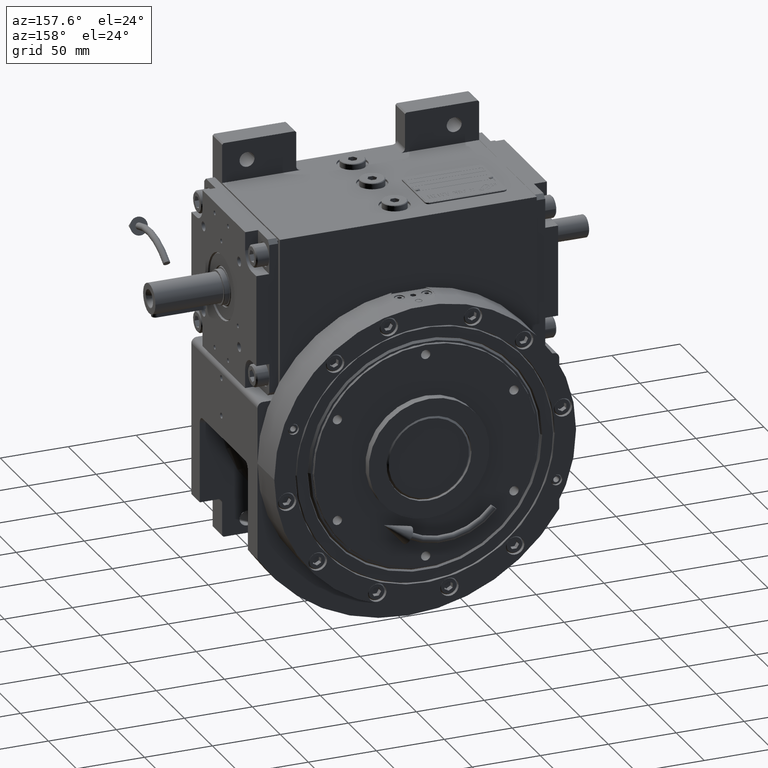
[diagram: clean part render]
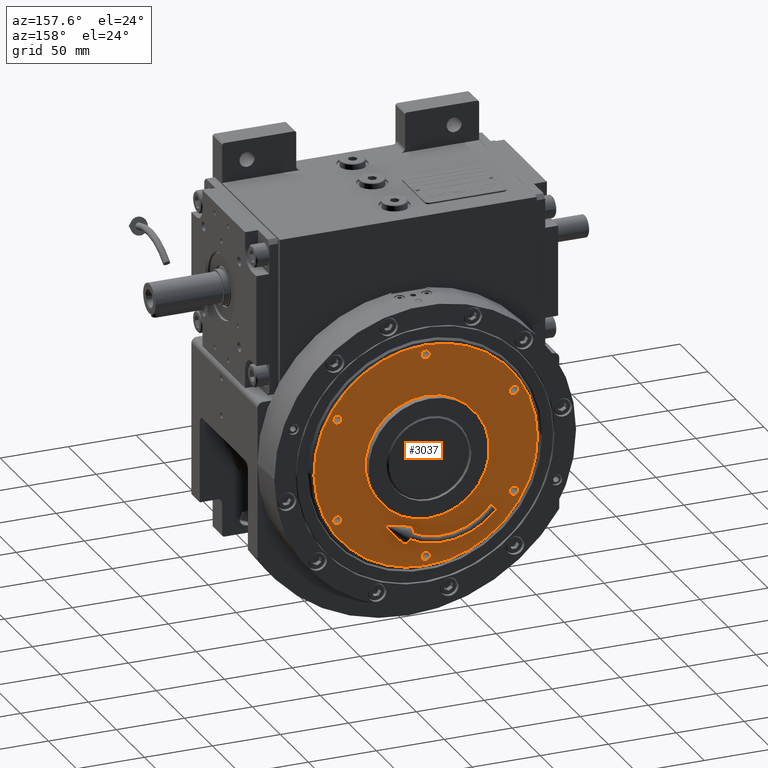
[diagram: same view with one face highlighted and labeled with its STEP entity id]
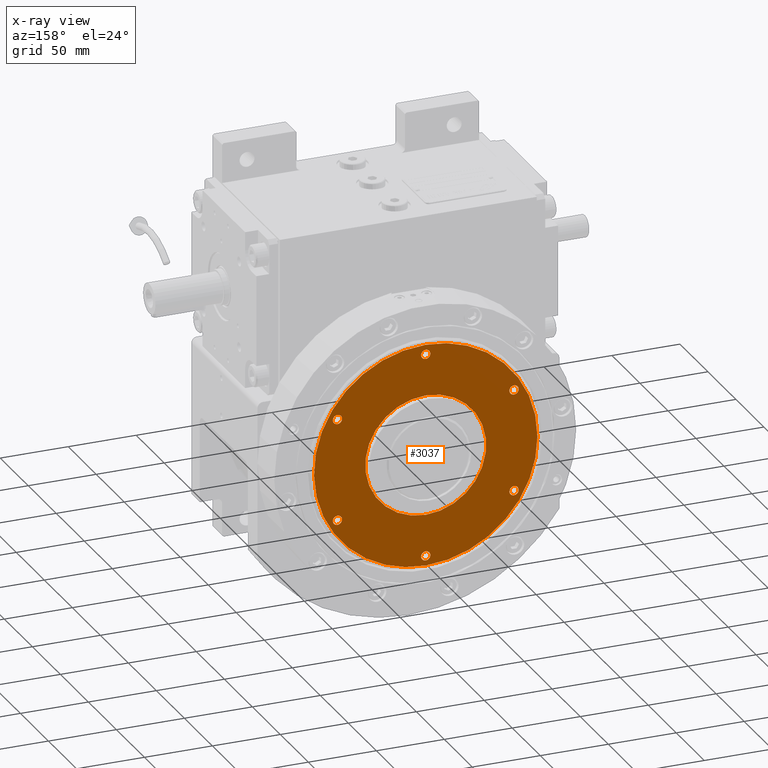
[diagram: x-ray of the same camera — body ghosted, the highlighted face saturated]
A machine part, auxiliary view. The second image highlights one B-rep face of the part: STEP entity #3037.
The next image is the same camera in x-ray: the body ghosted, the highlighted face saturated — about 0% of this face is hidden behind the body in this view.
In plain terms, the highlighted planar face has unit normal (-0, -1, 0).
Its self-contained STEP definition (entity closure, byte-faithful):
#130 = DIRECTION ( 'NONE',  ( 2.076516686384254139E-16, -1.000000000000000000, -1.606026332851818412E-15 ) ) ;
#195 = VERTEX_POINT ( 'NONE', #60080 ) ;
#201 = CIRCLE ( 'NONE', #6757, 3.400000000000000355 ) ;
#411 = ORIENTED_EDGE ( 'NONE', *, *, #856, .F. ) ;
#479 = ORIENTED_EDGE ( 'NONE', *, *, #46910, .F. ) ;
#658 = CARTESIAN_POINT ( 'NONE',  ( 73.74813151264126532, 110.5000000000000142, -36.37479690083394246 ) ) ;
#856 = EDGE_CURVE ( 'NONE', #26969, #61461, #20213, .T. ) ;
#994 = VERTEX_POINT ( 'NONE', #56077 ) ;
#1031 = CARTESIAN_POINT ( 'NONE',  ( -81.03742544091521438, 110.5000000000000853, -13.71909706410265350 ) ) ;
#1201 = FACE_OUTER_BOUND ( 'NONE', #44023, .T. ) ;
#1343 = CARTESIAN_POINT ( 'NONE',  ( 21.32671897775460579, 110.5000000000000853, -79.55379426815648003 ) ) ;
#1377 = CARTESIAN_POINT ( 'NONE',  ( -79.42706700825722521, 110.5000000000001421, -21.28825086087030627 ) ) ;
#1461 = CARTESIAN_POINT ( 'NONE',  ( -4.050926261100700401E-14, 110.5000000000000000, 1.712657793362490655E-13 ) ) ;
#2023 = CARTESIAN_POINT ( 'NONE',  ( -5.396175763947922199, 110.4999999999998721, 82.18599094346414802 ) ) ;
#2062 = CARTESIAN_POINT ( 'NONE',  ( -50.14754556814374098, 110.5000000000001279, -65.33666926840503208 ) ) ;
#2283 = DIRECTION ( 'NONE',  ( 3.652307214833036888E-15, 1.000000000000000000, 3.671899385855933489E-15 ) ) ;
#2360 = CARTESIAN_POINT ( 'NONE',  ( 10.74154536275718641, 110.4999999999998579, 81.65949047945834138 ) ) ;
#2800 = ORIENTED_EDGE ( 'NONE', *, *, #41016, .T. ) ;
#2850 = CARTESIAN_POINT ( 'NONE',  ( -75.00000000000000000, 110.5000000000000000, 2.458476131006590826E-13 ) ) ;
#3028 = CARTESIAN_POINT ( 'NONE',  ( 41.17346744512529710, 110.4999999999998579, 71.33314274904860497 ) ) ;
#3037 = ADVANCED_FACE ( 'NONE', ( #1201, #32886, #42547, #10484, #10819, #48371, #5338, #62873 ), #20847, .F. ) ;
#3268 = AXIS2_PLACEMENT_3D ( 'NONE', #47624, #15603, #32813 ) ;
#3691 = CARTESIAN_POINT ( 'NONE',  ( 73.74790136345734481, 110.4999999999998437, 36.37523474268285639 ) ) ;
#3798 = DIRECTION ( 'NONE',  ( -5.273559366969652325E-16, 1.000000000000000000, 3.671899385855942166E-15 ) ) ;
#4877 = CIRCLE ( 'NONE', #18119, 3.400000000000000355 ) ;
#5338 = FACE_BOUND ( 'NONE', #17202, .T. ) ;
#5795 = EDGE_CURVE ( 'NONE', #994, #8260, #18889, .T. ) ;
#5803 = CARTESIAN_POINT ( 'NONE',  ( 82.18603400874251008, 110.5000015448018047, 1.581324463008391097E-07 ) ) ;
#6171 = CARTESIAN_POINT ( 'NONE',  ( -77.86803878220750619, 110.5000000000001137, -26.42874468702207480 ) ) ;
#6185 = CIRCLE ( 'NONE', #62304, 3.400000000000000355 ) ;
#6409 = AXIS2_PLACEMENT_3D ( 'NONE', #23318, #38844, #43671 ) ;
#6410 = B_SPLINE_CURVE_WITH_KNOTS ( 'NONE', 3,
 ( #64702, #17852, #65041, #33710, #12671, #39213, #49528, #17512, #28861, #12331, #60223, #24014, #13008, #38542, #28190, #38877, #60543, #33363, #28527, #7160, #55021, #49200, #39537, #2023, #13346, #2360, #7831, #49870, #50210, #3028, #56377, #9856, #8510, #45370, #62577, #41241, #3691, #46730, #67732, #67054, #62228, #66725, #51213, #9513, #29861, #20567, #56730, #20225 ),
 .UNSPECIFIED., .F., .F.,
 ( 4, 1, 1, 1, 2, 2, 2, 2, 2, 2, 2, 2, 2, 2, 2, 2, 2, 2, 2, 2, 2, 1, 1, 1, 2, 2, 4 ),
 ( 0.000000000000000000, 0.03125000000000001388, 0.04687500000000003469, 0.05468750000000004857, 0.05859375000000006939, 0.06250000000000008327, 0.09375000000000011102, 0.1250000000000001388, 0.1875000000000001943, 0.2500000000000002220, 0.3125000000000002776, 0.3750000000000002776, 0.4375000000000003331, 0.5000000000000003331, 0.5625000000000004441, 0.6250000000000005551, 0.6875000000000005551, 0.7500000000000005551, 0.8125000000000005551, 0.8437500000000005551, 0.8750000000000006661, 0.9062500000000006661, 0.9218750000000006661, 0.9296875000000006661, 0.9335937500000006661, 0.9375000000000006661, 1.000000000000000000 ),
 .UNSPECIFIED. ) ;
#6757 = AXIS2_PLACEMENT_3D ( 'NONE', #38769, #28754, #64243 ) ;
#6820 = CARTESIAN_POINT ( 'NONE',  ( 78.32115647600105035, 110.4999999999999716, -25.16263082416804409 ) ) ;
#7160 = CARTESIAN_POINT ( 'NONE',  ( -36.43677092628833236, 110.4999999999999005, 73.86494086435318707 ) ) ;
#7192 = DIRECTION ( 'NONE',  ( -5.273559366969623729E-16, 1.000000000000000000, -5.077637656740424015E-16 ) ) ;
#7201 = CARTESIAN_POINT ( 'NONE',  ( -80.08026981023142810, 110.5000000000000995, -18.67866566709005838 ) ) ;
#7597 = CIRCLE ( 'NONE', #46108, 44.45000000000000284 ) ;
#7730 = AXIS2_PLACEMENT_3D ( 'NONE', #26349, #27718, #37722 ) ;
#7766 = ORIENTED_EDGE ( 'NONE', *, *, #46334, .F. ) ;
#7831 = CARTESIAN_POINT ( 'NONE',  ( 21.32597268393186951, 110.4999999999998721, 79.55402177641899186 ) ) ;
#8105 = CIRCLE ( 'NONE', #18014, 3.400000000000000355 ) ;
#8260 = VERTEX_POINT ( 'NONE', #38942 ) ;
#8510 = CARTESIAN_POINT ( 'NONE',  ( 61.93011393209873461, 110.4999999999998721, 54.29833759267270921 ) ) ;
#8538 = ORIENTED_EDGE ( 'NONE', *, *, #57475, .F. ) ;
#8693 = CIRCLE ( 'NONE', #54884, 3.400000000000000355 ) ;
#8912 = VERTEX_POINT ( 'NONE', #48756 ) ;
#9480 = VERTEX_POINT ( 'NONE', #33790 ) ;
#9513 = CARTESIAN_POINT ( 'NONE',  ( 80.47346500646511913, 110.4999999999999289, 16.69135747300166628 ) ) ;
#9631 = DIRECTION ( 'NONE',  ( -5.273559366969644437E-16, 1.000000000000000000, 1.582067810090946875E-15 ) ) ;
#9856 = CARTESIAN_POINT ( 'NONE',  ( 54.29876972623152653, 110.4999999999998579, 61.92967476324753306 ) ) ;
#9966 = CARTESIAN_POINT ( 'NONE',  ( 37.49999999999973710, 110.5000000000005258, 64.95190528383290030 ) ) ;
#10484 = FACE_BOUND ( 'NONE', #61924, .T. ) ;
#10819 = FACE_BOUND ( 'NONE', #31118, .T. ) ;
#11297 = CARTESIAN_POINT ( 'NONE',  ( 81.65587465362946773, 110.5000000000000000, -10.75668806138973110 ) ) ;
#12331 = CARTESIAN_POINT ( 'NONE',  ( -79.42723460417916215, 110.5000000000000000, 21.28768615169964917 ) ) ;
#12671 = CARTESIAN_POINT ( 'NONE',  ( -81.03738559922314266, 110.5000000000000426, 13.71894467123681594 ) ) ;
#12712 = CARTESIAN_POINT ( 'NONE',  ( -61.93037135062299825, 110.5000000000001421, -54.29808050887285731 ) ) ;
#13008 = CARTESIAN_POINT ( 'NONE',  ( -73.86467355760835574, 110.4999999999999574, 36.43724814399707412 ) ) ;
#13211 = VERTEX_POINT ( 'NONE', #65842 ) ;
#13346 = CARTESIAN_POINT ( 'NONE',  ( 5.396190313849515974, 110.4999999999998721, 82.18606838660643632 ) ) ;
#14026 = AXIS2_PLACEMENT_3D ( 'NONE', #9966, #3798, #60995 ) ;
#15603 = DIRECTION ( 'NONE',  ( -5.273559366969623729E-16, 1.000000000000000000, -5.077637656740325407E-16 ) ) ;
#15760 = EDGE_LOOP ( 'NONE', ( #8538, #63502 ) ) ;
#16001 = EDGE_CURVE ( 'NONE', #8260, #994, #4877, .T. ) ;
#16666 = ORIENTED_EDGE ( 'NONE', *, *, #30190, .F. ) ;
#16749 = ORIENTED_EDGE ( 'NONE', *, *, #30800, .F. ) ;
#16826 = CARTESIAN_POINT ( 'NONE',  ( 50.14771722367685669, 110.5000000000000995, -65.33645767331695708 ) ) ;
#16861 = CARTESIAN_POINT ( 'NONE',  ( -10.74076764840351927, 110.5000000000001137, -81.65964476131436811 ) ) ;
#17202 = EDGE_LOOP ( 'NONE', ( #24156, #56614 ) ) ;
#17512 = CARTESIAN_POINT ( 'NONE',  ( -80.67297687466574985, 110.5000000000000284, 15.69867770626870396 ) ) ;
#17550 = CARTESIAN_POINT ( 'NONE',  ( -54.29850716401770683, 110.5000000000001421, -61.92993699073136327 ) ) ;
#17852 = CARTESIAN_POINT ( 'NONE',  ( -82.18410185386893829, 110.5000000000000711, 2.706720040397581517 ) ) ;
#17972 = DIRECTION ( 'NONE',  ( 1.000000000000000000, -1.248844797103662988E-15, -6.380827771813924907E-16 ) ) ;
#18014 = AXIS2_PLACEMENT_3D ( 'NONE', #24774, #34809, #35818 ) ;
#18119 = AXIS2_PLACEMENT_3D ( 'NONE', #2850, #33875, #49699 ) ;
#18232 = CARTESIAN_POINT ( 'NONE',  ( -80.67302273752038388, 110.5000000000000853, -15.69862675829485354 ) ) ;
#18889 = CIRCLE ( 'NONE', #37603, 3.400000000000000355 ) ;
#20213 = CIRCLE ( 'NONE', #58712, 3.400000000000000355 ) ;
#20225 = CARTESIAN_POINT ( 'NONE',  ( 82.18603400874251008, 110.5000015448018047, 1.581324463008391097E-07 ) ) ;
#20567 = CARTESIAN_POINT ( 'NONE',  ( 81.65593245021587165, 110.4999999999999432, 10.75709170780801038 ) ) ;
#20847 = PLANE ( 'NONE',  #7730 ) ;
#20864 = CIRCLE ( 'NONE', #50550, 44.45000000000000284 ) ;
#20998 = VERTEX_POINT ( 'NONE', #54575 ) ;
#21539 = ORIENTED_EDGE ( 'NONE', *, *, #5795, .F. ) ;
#22159 = VERTEX_POINT ( 'NONE', #60109 ) ;
#22344 = CARTESIAN_POINT ( 'NONE',  ( 80.33387830201934321, 110.5000000000000142, -17.35095847086814302 ) ) ;
#22583 = AXIS2_PLACEMENT_3D ( 'NONE', #39701, #45876, #51036 ) ;
#22725 = CARTESIAN_POINT ( 'NONE',  ( -73.86436510405077627, 110.5000000000001421, -36.43783581387047832 ) ) ;
#23318 = CARTESIAN_POINT ( 'NONE',  ( -37.50000000000026290, 110.5000000000005258, 64.95190528383290030 ) ) ;
#23612 = DIRECTION ( 'NONE',  ( 1.000000000000000000, -4.081702296416015997E-15, 0.000000000000000000 ) ) ;
#23919 = EDGE_LOOP ( 'NONE', ( #411, #7766 ) ) ;
#24014 = CARTESIAN_POINT ( 'NONE',  ( -76.96276536764069931, 110.5000000000000000, 28.95822631422438675 ) ) ;
#24156 = ORIENTED_EDGE ( 'NONE', *, *, #50144, .F. ) ;
#24774 = CARTESIAN_POINT ( 'NONE',  ( 75.00000000000000000, 110.5000000000000000, 1.068979973983941616E-13 ) ) ;
#24986 = DIRECTION ( 'NONE',  ( -1.000000000000000000, 4.081702296416015997E-15, 0.000000000000000000 ) ) ;
#26349 = CARTESIAN_POINT ( 'NONE',  ( -3.796580531812242820E-14, 110.5000000000000000, 1.748184930150495917E-13 ) ) ;
#26712 = DIRECTION ( 'NONE',  ( -5.273559366969644437E-16, 1.000000000000000000, 1.582067810090946875E-15 ) ) ;
#26823 = CARTESIAN_POINT ( 'NONE',  ( 80.54158547785662847, 110.4999999999999716, -16.35931090249719233 ) ) ;
#26969 = VERTEX_POINT ( 'NONE', #50629 ) ;
#27718 = DIRECTION ( 'NONE',  ( -7.110468897703216240E-16, -1.000000000000000000, -1.582067810090945692E-15 ) ) ;
#27861 = CARTESIAN_POINT ( 'NONE',  ( 61.93063791654589068, 110.5000000000000568, -54.29769947772616945 ) ) ;
#27891 = CARTESIAN_POINT ( 'NONE',  ( -81.41054315470110225, 110.5000000000000853, -11.40073033654683776 ) ) ;
#28190 = CARTESIAN_POINT ( 'NONE',  ( -65.33761603904910942, 110.4999999999999858, 50.14632643991285477 ) ) ;
#28232 = CARTESIAN_POINT ( 'NONE',  ( -82.18412582237166930, 110.5000000000000995, -2.706922455996552124 ) ) ;
#28251 = B_SPLINE_CURVE_WITH_KNOTS ( 'NONE', 3,
 ( #5803, #44048, #11297, #26823, #32330, #22344, #47832, #43019, #6820, #65044, #59207, #658, #53330, #42680, #64356, #27861, #63675, #16826, #48860, #37861, #33023, #1343, #43362, #38215, #54023 ),
 .UNSPECIFIED., .F., .F.,
 ( 4, 2, 2, 1, 1, 1, 2, 2, 2, 2, 2, 2, 2, 4 ),
 ( 0.000000000000000000, 0.06249999648971073934, 0.06640624627031764537, 0.07031249605092454447, 0.07812499561213832877, 0.09374999473456591126, 0.1249999929794211317, 0.1562499912242763522, 0.1874999894691315450, 0.2499999859588421525, 0.3124999824485527600, 0.3749999789382633120, 0.4374999754279739750, 0.4999999719176845825 ),
 .UNSPECIFIED. ) ;
#28527 = CARTESIAN_POINT ( 'NONE',  ( -41.17372798125236244, 110.4999999999999147, 71.33306199257280866 ) ) ;
#28593 = CIRCLE ( 'NONE', #3268, 3.400000000000000355 ) ;
#28646 = DIRECTION ( 'NONE',  ( 1.120525994201121368E-16, 1.000000000000000000, 1.558109287330073168E-15 ) ) ;
#28754 = DIRECTION ( 'NONE',  ( -5.273559366969623729E-16, 1.000000000000000000, -5.077637656740475291E-16 ) ) ;
#28861 = CARTESIAN_POINT ( 'NONE',  ( -80.08037051196104983, 110.4999999999999858, 18.67829002333724020 ) ) ;
#29861 = CARTESIAN_POINT ( 'NONE',  ( 80.54161329299181205, 110.4999999999999147, 16.35928189945989075 ) ) ;
#30190 = EDGE_CURVE ( 'NONE', #8912, #9480, #7597, .T. ) ;
#30350 = B_SPLINE_CURVE_WITH_KNOTS ( 'NONE', 3,
 ( #52692, #39253, #16861, #48894, #65412, #48554, #33404, #2062, #17550, #12712, #37894, #32363, #22725, #54403, #6171, #1377, #7201, #18232, #59589, #59237, #1031, #27891, #53366, #28232, #58890 ),
 .UNSPECIFIED., .F., .F.,
 ( 4, 2, 2, 2, 2, 2, 2, 2, 2, 2, 1, 1, 1, 4 ),
 ( 0.4999999719176845825, 0.5624999754279740305, 0.6249999789382635340, 0.6874999824485529265, 0.7499999859588424300, 0.8124999894691320446, 0.8749999929794214371, 0.9062499947345662443, 0.9374999964897110516, 0.9414062467091039998, 0.9453124969284971701, 0.9531249973672832887, 0.9687499982448555258, 1.000000000000000000 ),
 .UNSPECIFIED. ) ;
#30800 = EDGE_CURVE ( 'NONE', #48278, #44036, #65812, .T. ) ;
#31118 = EDGE_LOOP ( 'NONE', ( #16749, #44382 ) ) ;
#31389 = CARTESIAN_POINT ( 'NONE',  ( -40.89999999999999858, 110.4999999999994742, -64.95190528383290030 ) ) ;
#32330 = CARTESIAN_POINT ( 'NONE',  ( 80.47346700800815711, 110.4999999999999858, -16.69126919466631520 ) ) ;
#32363 = CARTESIAN_POINT ( 'NONE',  ( -71.33364469616634551, 110.5000000000001421, -41.17277949763061429 ) ) ;
#32813 = DIRECTION ( 'NONE',  ( 1.000000000000000000, 0.000000000000000000, 0.000000000000000000 ) ) ;
#32886 = FACE_BOUND ( 'NONE', #60284, .T. ) ;
#32961 = EDGE_CURVE ( 'NONE', #8912, #9480, #20864, .T. ) ;
#33023 = CARTESIAN_POINT ( 'NONE',  ( 26.46527515611211712, 110.5000000000000711, -77.99510436064846886 ) ) ;
#33363 = CARTESIAN_POINT ( 'NONE',  ( -50.14684274527401442, 110.4999999999999147, 65.33704237330360343 ) ) ;
#33404 = CARTESIAN_POINT ( 'NONE',  ( -41.17304319471158180, 110.5000000000001563, -71.33342587732599327 ) ) ;
#33710 = CARTESIAN_POINT ( 'NONE',  ( -81.41049721478044887, 110.5000000000000426, 11.40046640563029001 ) ) ;
#33790 = CARTESIAN_POINT ( 'NONE',  ( -44.45000000000000284, 110.5000000000000000, 2.049194677988252161E-13 ) ) ;
#33875 = DIRECTION ( 'NONE',  ( -5.273559366969644437E-16, 1.000000000000000000, 1.582067810090946875E-15 ) ) ;
#34705 = VERTEX_POINT ( 'NONE', #31389 ) ;
#34809 = DIRECTION ( 'NONE',  ( -5.273559366969644437E-16, 1.000000000000000000, 1.582067810090946875E-15 ) ) ;
#34938 = CIRCLE ( 'NONE', #14026, 3.400000000000000355 ) ;
#35680 = DIRECTION ( 'NONE',  ( 3.652307214833036888E-15, 1.000000000000000000, 3.671899385855924023E-15 ) ) ;
#35818 = DIRECTION ( 'NONE',  ( 1.000000000000000000, 0.000000000000000000, 5.962856842276790033E-16 ) ) ;
#36314 = ORIENTED_EDGE ( 'NONE', *, *, #32961, .T. ) ;
#37435 = CARTESIAN_POINT ( 'NONE',  ( 40.89999999999999858, 110.4999999999994742, -64.95190528383290030 ) ) ;
#37603 = AXIS2_PLACEMENT_3D ( 'NONE', #42905, #26712, #63567 ) ;
#37722 = DIRECTION ( 'NONE',  ( -1.000000000000000000, 7.110468897703203421E-16, 8.404735241107630372E-16 ) ) ;
#37861 = CARTESIAN_POINT ( 'NONE',  ( 36.43741795798398897, 110.5000000000000995, -73.86467248177743272 ) ) ;
#37894 = CARTESIAN_POINT ( 'NONE',  ( -65.33708734634382154, 110.5000000000001279, -50.14696052069761123 ) ) ;
#38215 = CARTESIAN_POINT ( 'NONE',  ( 5.396965314102865285, 110.5000000000000995, -82.18599046470612279 ) ) ;
#38542 = CARTESIAN_POINT ( 'NONE',  ( -71.33312151958747904, 110.4999999999999716, 41.17344376063498856 ) ) ;
#38769 = CARTESIAN_POINT ( 'NONE',  ( 37.50000000000000000, 110.4999999999994742, -64.95190528383290030 ) ) ;
#38844 = DIRECTION ( 'NONE',  ( 3.652307214833027421E-15, 1.000000000000000000, 3.671899385855938222E-15 ) ) ;
#38877 = CARTESIAN_POINT ( 'NONE',  ( -61.92976105365576700, 110.4999999999999858, 54.29857669836291478 ) ) ;
#38942 = CARTESIAN_POINT ( 'NONE',  ( -71.59999999999999432, 110.5000000000000000, 2.380580143392494824E-13 ) ) ;
#39133 = CARTESIAN_POINT ( 'NONE',  ( 37.50000000000000000, 110.4999999999994742, -64.95190528383290030 ) ) ;
#39213 = CARTESIAN_POINT ( 'NONE',  ( -80.85911346599482385, 110.5000000000000568, 14.71011054370736026 ) ) ;
#39253 = CARTESIAN_POINT ( 'NONE',  ( -5.396965920549730455, 110.5000000000001137, -82.18606886526305288 ) ) ;
#39537 = CARTESIAN_POINT ( 'NONE',  ( -10.74154236511540184, 110.4999999999999289, 81.65956691445208548 ) ) ;
#39701 = CARTESIAN_POINT ( 'NONE',  ( -37.50000000000026290, 110.5000000000005258, 64.95190528383290030 ) ) ;
#40551 = EDGE_CURVE ( 'NONE', #44036, #48278, #42344, .T. ) ;
#41016 = EDGE_CURVE ( 'NONE', #43361, #13211, #6410, .T. ) ;
#41241 = CARTESIAN_POINT ( 'NONE',  ( 71.21633143618710449, 110.4999999999998863, 41.11144999242253562 ) ) ;
#41483 = EDGE_LOOP ( 'NONE', ( #16666, #36314 ) ) ;
#42076 = ORIENTED_EDGE ( 'NONE', *, *, #16001, .F. ) ;
#42155 = DIRECTION ( 'NONE',  ( 1.000000000000000000, -9.366335978277473892E-16, -5.581567101667585714E-16 ) ) ;
#42344 = CIRCLE ( 'NONE', #22583, 3.400000000000000355 ) ;
#42382 = DIRECTION ( 'NONE',  ( -1.000000000000000000, 0.000000000000000000, -6.615929209703244874E-16 ) ) ;
#42547 = FACE_BOUND ( 'NONE', #15760, .T. ) ;
#42680 = CARTESIAN_POINT ( 'NONE',  ( 69.83423930135019475, 110.5000000000000142, -43.41667302301327425 ) ) ;
#42905 = CARTESIAN_POINT ( 'NONE',  ( -75.00000000000000000, 110.5000000000000000, 2.482901037548344774E-13 ) ) ;
#43019 = CARTESIAN_POINT ( 'NONE',  ( 79.57472203535752442, 110.4999999999999432, -20.63044246711246643 ) ) ;
#43361 = VERTEX_POINT ( 'NONE', #55971 ) ;
#43362 = CARTESIAN_POINT ( 'NONE',  ( 10.74078281828398218, 110.5000000000001137, -81.65971843768936367 ) ) ;
#43671 = DIRECTION ( 'NONE',  ( -1.000000000000000000, 4.081702296416015997E-15, 0.000000000000000000 ) ) ;
#44023 = EDGE_LOOP ( 'NONE', ( #2800, #46647, #60036 ) ) ;
#44036 = VERTEX_POINT ( 'NONE', #44469 ) ;
#44048 = CARTESIAN_POINT ( 'NONE',  ( 82.18217394222035921, 110.4999999999999858, -5.413439777049596557 ) ) ;
#44382 = ORIENTED_EDGE ( 'NONE', *, *, #40551, .F. ) ;
#44469 = CARTESIAN_POINT ( 'NONE',  ( -34.10000000000026432, 110.5000000000005258, 64.95190528383290030 ) ) ;
#45370 = CARTESIAN_POINT ( 'NONE',  ( 65.33793898011036561, 110.4999999999998721, 50.14568632257596903 ) ) ;
#45516 = VERTEX_POINT ( 'NONE', #53700 ) ;
#45876 = DIRECTION ( 'NONE',  ( -5.273559366969623729E-16, 1.000000000000000000, -5.077637656740522622E-16 ) ) ;
#46108 = AXIS2_PLACEMENT_3D ( 'NONE', #1461, #28646, #17972 ) ;
#46334 = EDGE_CURVE ( 'NONE', #61461, #26969, #34938, .T. ) ;
#46647 = ORIENTED_EDGE ( 'NONE', *, *, #61316, .T. ) ;
#46730 = CARTESIAN_POINT ( 'NONE',  ( 74.89794069821213895, 110.4999999999998437, 33.94279222128619011 ) ) ;
#46910 = EDGE_CURVE ( 'NONE', #61667, #195, #6185, .T. ) ;
#47528 = CARTESIAN_POINT ( 'NONE',  ( 75.00000000000000000, 110.5000000000000000, 1.168900046200205579E-13 ) ) ;
#47624 = CARTESIAN_POINT ( 'NONE',  ( -37.50000000000000000, 110.4999999999994742, -64.95190528383290030 ) ) ;
#47832 = CARTESIAN_POINT ( 'NONE',  ( 80.11857142980534263, 110.4999999999999716, -18.33865731567751567 ) ) ;
#48247 = ORIENTED_EDGE ( 'NONE', *, *, #54129, .F. ) ;
#48278 = VERTEX_POINT ( 'NONE', #51235 ) ;
#48323 = AXIS2_PLACEMENT_3D ( 'NONE', #47528, #9631, #42382 ) ;
#48371 = FACE_BOUND ( 'NONE', #23919, .T. ) ;
#48554 = CARTESIAN_POINT ( 'NONE',  ( -36.43753282681044681, 110.5000000000001705, -73.86470531561981545 ) ) ;
#48756 = CARTESIAN_POINT ( 'NONE',  ( 44.45000000000000284, 110.5000000000000000, 1.429029998905364916E-13 ) ) ;
#48860 = CARTESIAN_POINT ( 'NONE',  ( 41.17286106389223477, 110.5000000000001137, -71.33364164011436515 ) ) ;
#48894 = CARTESIAN_POINT ( 'NONE',  ( -21.32673791258709528, 110.5000000000001421, -79.55386997823384831 ) ) ;
#49200 = CARTESIAN_POINT ( 'NONE',  ( -21.32594694526335743, 110.4999999999998863, 79.55394827524169443 ) ) ;
#49228 = CARTESIAN_POINT ( 'NONE',  ( 37.49999999999973710, 110.5000000000005258, 64.95190528383290030 ) ) ;
#49528 = CARTESIAN_POINT ( 'NONE',  ( -80.73618378714651556, 110.5000000000000142, 15.37033942092499217 ) ) ;
#49699 = DIRECTION ( 'NONE',  ( 1.000000000000000000, 0.000000000000000000, -3.191534046846391344E-15 ) ) ;
#49870 = CARTESIAN_POINT ( 'NONE',  ( 26.46597584794663760, 110.4999999999998437, 77.99473097346026407 ) ) ;
#50144 = EDGE_CURVE ( 'NONE', #45516, #60788, #68093, .T. ) ;
#50210 = CARTESIAN_POINT ( 'NONE',  ( 36.43673274471090906, 110.4999999999998153, 73.86503631034800321 ) ) ;
#50550 = AXIS2_PLACEMENT_3D ( 'NONE', #57658, #130, #42155 ) ;
#50629 = CARTESIAN_POINT ( 'NONE',  ( 34.09999999999973141, 110.5000000000005258, 64.95190528383290030 ) ) ;
#50878 = CARTESIAN_POINT ( 'NONE',  ( 40.89999999999973568, 110.5000000000005258, 64.95190528383290030 ) ) ;
#51036 = DIRECTION ( 'NONE',  ( 1.000000000000000000, 0.000000000000000000, 0.000000000000000000 ) ) ;
#51173 = CARTESIAN_POINT ( 'NONE',  ( -37.50000000000000000, 110.4999999999994742, -64.95190528383290030 ) ) ;
#51213 = CARTESIAN_POINT ( 'NONE',  ( 80.33384769217839505, 110.4999999999999432, 17.35112966435332282 ) ) ;
#51235 = CARTESIAN_POINT ( 'NONE',  ( -40.90000000000026148, 110.5000000000005258, 64.95190528383290030 ) ) ;
#52692 = CARTESIAN_POINT ( 'NONE',  ( -1.048302632909893357E-10, 110.4999999999999858, -82.18603692326387034 ) ) ;
#53330 = CARTESIAN_POINT ( 'NONE',  ( 71.21656534630048441, 110.5000000000000142, -41.11101387479450153 ) ) ;
#53366 = CARTESIAN_POINT ( 'NONE',  ( -81.98533930688324745, 110.5000000000000568, -6.740832071539154313 ) ) ;
#53700 = CARTESIAN_POINT ( 'NONE',  ( 71.59999999999999432, 110.5000000000000000, 1.142760808881283269E-13 ) ) ;
#54023 = CARTESIAN_POINT ( 'NONE',  ( -1.048302632909893357E-10, 110.4999999999999858, -82.18603692326387034 ) ) ;
#54129 = EDGE_CURVE ( 'NONE', #195, #61667, #201, .T. ) ;
#54403 = CARTESIAN_POINT ( 'NONE',  ( -76.96293238175641704, 110.5000000000001279, -28.95791760141058546 ) ) ;
#54575 = CARTESIAN_POINT ( 'NONE',  ( -1.048302632909893357E-10, 110.4999999999999858, -82.18603692326387034 ) ) ;
#54884 = AXIS2_PLACEMENT_3D ( 'NONE', #51173, #35680, #24986 ) ;
#55021 = CARTESIAN_POINT ( 'NONE',  ( -26.46591210633612334, 110.4999999999998863, 77.99484015378862978 ) ) ;
#55971 = CARTESIAN_POINT ( 'NONE',  ( -82.18603400874100373, 110.5000015448012078, -1.581320860106548245E-07 ) ) ;
#56077 = CARTESIAN_POINT ( 'NONE',  ( -78.39999999999999147, 110.5000000000000000, 2.434087265026099747E-13 ) ) ;
#56377 = CARTESIAN_POINT ( 'NONE',  ( 50.14712887847358758, 110.4999999999998295, 65.33694734459885467 ) ) ;
#56614 = ORIENTED_EDGE ( 'NONE', *, *, #62826, .F. ) ;
#56730 = CARTESIAN_POINT ( 'NONE',  ( 82.18222187922346222, 110.4999999999999432, 5.413844607824422006 ) ) ;
#57475 = EDGE_CURVE ( 'NONE', #34705, #22159, #8693, .T. ) ;
#57658 = CARTESIAN_POINT ( 'NONE',  ( -2.985112157460509733E-14, 110.5000000000000000, 1.677130656574485646E-13 ) ) ;
#58089 = EDGE_CURVE ( 'NONE', #22159, #34705, #28593, .T. ) ;
#58712 = AXIS2_PLACEMENT_3D ( 'NONE', #49228, #7192, #60249 ) ;
#58890 = CARTESIAN_POINT ( 'NONE',  ( -82.18603400874100373, 110.5000015448012078, -1.581320860106548245E-07 ) ) ;
#59207 = CARTESIAN_POINT ( 'NONE',  ( 74.89780891093307957, 110.5000000000000284, -33.94318345663821646 ) ) ;
#59237 = CARTESIAN_POINT ( 'NONE',  ( -80.85914935550094640, 110.5000000000001137, -14.71020086056633147 ) ) ;
#59589 = CARTESIAN_POINT ( 'NONE',  ( -80.73621674438213347, 110.5000000000000995, -15.37038518178266422 ) ) ;
#60036 = ORIENTED_EDGE ( 'NONE', *, *, #65225, .T. ) ;
#60080 = CARTESIAN_POINT ( 'NONE',  ( 34.10000000000000142, 110.4999999999994742, -64.95190528383290030 ) ) ;
#60109 = CARTESIAN_POINT ( 'NONE',  ( -34.10000000000000142, 110.4999999999994742, -64.95190528383290030 ) ) ;
#60223 = CARTESIAN_POINT ( 'NONE',  ( -77.86821339563778110, 110.5000000000000142, 26.42818210147190072 ) ) ;
#60249 = DIRECTION ( 'NONE',  ( -1.000000000000000000, 0.000000000000000000, 0.000000000000000000 ) ) ;
#60284 = EDGE_LOOP ( 'NONE', ( #48247, #479 ) ) ;
#60543 = CARTESIAN_POINT ( 'NONE',  ( -54.29909472632881062, 110.4999999999999005, 61.92944677904193895 ) ) ;
#60788 = VERTEX_POINT ( 'NONE', #62833 ) ;
#60995 = DIRECTION ( 'NONE',  ( 1.000000000000000000, 0.000000000000000000, 0.000000000000000000 ) ) ;
#61316 = EDGE_CURVE ( 'NONE', #13211, #20998, #28251, .T. ) ;
#61461 = VERTEX_POINT ( 'NONE', #50878 ) ;
#61667 = VERTEX_POINT ( 'NONE', #37435 ) ;
#61924 = EDGE_LOOP ( 'NONE', ( #21539, #42076 ) ) ;
#62228 = CARTESIAN_POINT ( 'NONE',  ( 79.57457908632081001, 110.4999999999999147, 20.63093614355477001 ) ) ;
#62304 = AXIS2_PLACEMENT_3D ( 'NONE', #39133, #2283, #23612 ) ;
#62577 = CARTESIAN_POINT ( 'NONE',  ( 69.83408181518966273, 110.4999999999998721, 43.41695845024580791 ) ) ;
#62826 = EDGE_CURVE ( 'NONE', #60788, #45516, #8105, .T. ) ;
#62833 = CARTESIAN_POINT ( 'NONE',  ( 78.39999999999999147, 110.5000000000000000, 1.089253687247680112E-13 ) ) ;
#62873 = FACE_BOUND ( 'NONE', #41483, .T. ) ;
#63502 = ORIENTED_EDGE ( 'NONE', *, *, #58089, .F. ) ;
#63567 = DIRECTION ( 'NONE',  ( -1.000000000000000000, 0.000000000000000000, -2.228966602794090332E-15 ) ) ;
#63675 = CARTESIAN_POINT ( 'NONE',  ( 54.29822300750017661, 110.5000000000000995, -61.93031885547883775 ) ) ;
#64243 = DIRECTION ( 'NONE',  ( -1.000000000000000000, 0.000000000000000000, 0.000000000000000000 ) ) ;
#64356 = CARTESIAN_POINT ( 'NONE',  ( 65.33763228115985555, 110.5000000000000568, -50.14630245138513942 ) ) ;
#64702 = CARTESIAN_POINT ( 'NONE',  ( -82.18603400874100373, 110.5000015448012078, -1.581320860106548245E-07 ) ) ;
#65041 = CARTESIAN_POINT ( 'NONE',  ( -81.98529366466031831, 110.5000000000000568, 6.740478288382870886 ) ) ;
#65044 = CARTESIAN_POINT ( 'NONE',  ( 76.96232867576262038, 110.4999999999999858, -28.95928036596258082 ) ) ;
#65225 = EDGE_CURVE ( 'NONE', #20998, #43361, #30350, .T. ) ;
#65412 = CARTESIAN_POINT ( 'NONE',  ( -26.46516568415016124, 110.5000000000001563, -77.99506614383155068 ) ) ;
#65812 = CIRCLE ( 'NONE', #6409, 3.400000000000000355 ) ;
#65842 = CARTESIAN_POINT ( 'NONE',  ( 82.18603400874251008, 110.5000015448018047, 1.581324463008391097E-07 ) ) ;
#66725 = CARTESIAN_POINT ( 'NONE',  ( 80.11850087870723769, 110.4999999999998863, 18.33894396968175045 ) ) ;
#67054 = CARTESIAN_POINT ( 'NONE',  ( 78.32095192439936682, 110.4999999999999005, 25.16328900372736399 ) ) ;
#67732 = CARTESIAN_POINT ( 'NONE',  ( 76.96221393906920127, 110.4999999999999289, 28.95965176232092020 ) ) ;
#68093 = CIRCLE ( 'NONE', #48323, 3.400000000000000355 ) ;